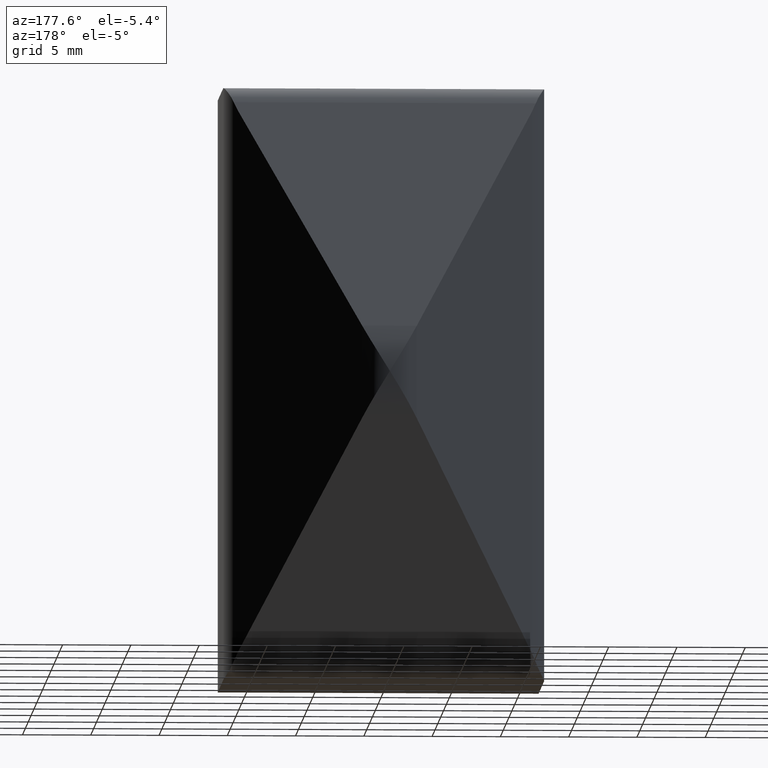
[diagram: clean part render]
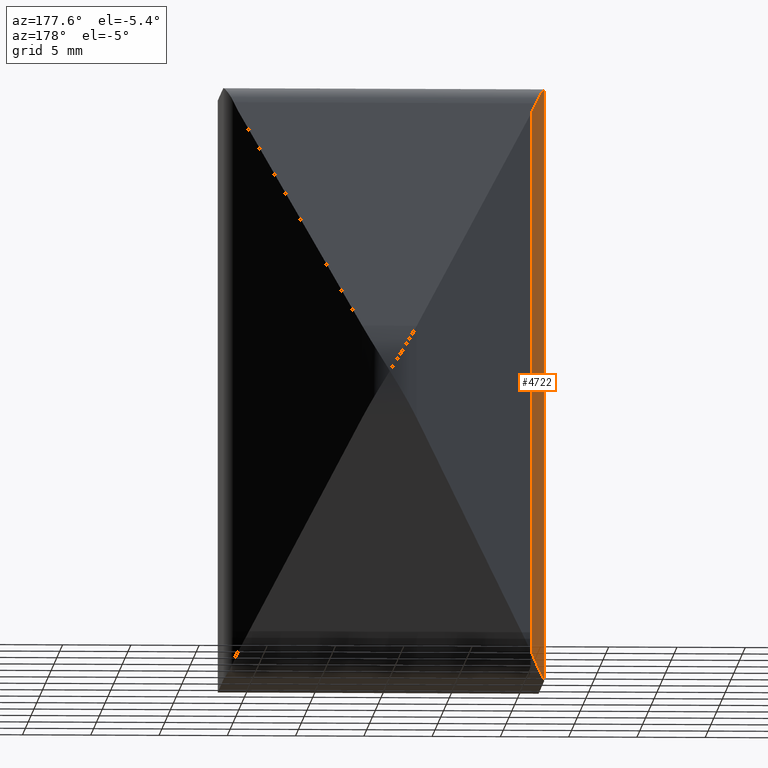
[diagram: same view with one face highlighted and labeled with its STEP entity id]
A machine part, auxiliary view. The second image highlights one B-rep face of the part: STEP entity #4722.
In plain terms, the highlighted cylindrical surface (partial cylindrical patch) has radius 3 mm, axis along (-0, -0, -1).
Its self-contained STEP definition (entity closure, byte-faithful):
#291 = EDGE_CURVE ( 'NONE', #2282, #7958, #3112, .T. ) ;
#623 = CARTESIAN_POINT ( 'NONE',  ( -11.12936365496484292, 11.49048314453780861, -20.71906821089724815 ) ) ;
#1331 = ORIENTED_EDGE ( 'NONE', *, *, #6806, .T. ) ;
#1466 = CARTESIAN_POINT ( 'NONE',  ( -11.12936365496484292, 11.49048314453781394, 20.71906821089724815 ) ) ;
#1951 = DIRECTION ( 'NONE',  ( -1.000000000000000000, 0.000000000000000000, 0.000000000000000000 ) ) ;
#2100 = CARTESIAN_POINT ( 'NONE',  ( -11.74999999999998934, 9.659937604194869465, -21.75000000000000000 ) ) ;
#2282 = VERTEX_POINT ( 'NONE', #14055 ) ;
#2347 = VERTEX_POINT ( 'NONE', #2100 ) ;
#2751 = CARTESIAN_POINT ( 'NONE',  ( -11.44812434713124460, 10.98342225347418122, 21.29804950711899281 ) ) ;
#2867 = CARTESIAN_POINT ( 'NONE',  ( -11.05863124245042428, 11.57571989516164024, -20.53991164497543664 ) ) ;
#2968 = CARTESIAN_POINT ( 'NONE',  ( -11.75000000000000178, 9.871120597097993610, -21.75000000000001066 ) ) ;
#3112 =( BOUNDED_CURVE ( )  B_SPLINE_CURVE ( 3, ( #5000, #11409, #10283, #3806 ),
 .UNSPECIFIED., .F., .F. ) 
 B_SPLINE_CURVE_WITH_KNOTS ( ( 4, 4 ),
 ( 5.405058927440569150, 5.552580595318936219 ),
 .UNSPECIFIED. ) 
 CURVE ( )  GEOMETRIC_REPRESENTATION_ITEM ( )  RATIONAL_B_SPLINE_CURVE ( ( 1.000000000000000000, 0.9981872685538730749, 0.9981872685538730749, 1.000000000000000000 ) ) 
 REPRESENTATION_ITEM ( '' )  );
#3308 = CARTESIAN_POINT ( 'NONE',  ( -11.05863124245042428, 11.57571989516164024, -20.53991164497543664 ) ) ;
#3386 = B_SPLINE_CURVE_WITH_KNOTS ( 'NONE', 3,
 ( #8408, #623, #8296, #9615, #9453, #14745, #14692, #12149, #2968, #4406 ),
 .UNSPECIFIED., .F., .F.,
 ( 4, 2, 2, 2, 4 ),
 ( 0.000000000000000000, 0.0006225841437978969035, 0.001245168287595793807, 0.001867752431393690602, 0.002490336575191587614 ),
 .UNSPECIFIED. ) ;
#3692 = ORIENTED_EDGE ( 'NONE', *, *, #6096, .F. ) ;
#3806 = CARTESIAN_POINT ( 'NONE',  ( -10.75196038653899322, 11.89425061063079880, 19.87040150168144947 ) ) ;
#4116 = ORIENTED_EDGE ( 'NONE', *, *, #4703, .F. ) ;
#4235 = CARTESIAN_POINT ( 'NONE',  ( -11.20924667139509268, 11.38460790133654932, 20.87886968654525077 ) ) ;
#4406 = CARTESIAN_POINT ( 'NONE',  ( -11.74999999999998934, 9.659937604194869465, -21.75000000000000000 ) ) ;
#4703 = EDGE_CURVE ( 'NONE', #11074, #10413, #9159, .T. ) ;
#4722 = ADVANCED_FACE ( 'NONE', ( #10478 ), #7020, .T. ) ;
#5000 = CARTESIAN_POINT ( 'NONE',  ( -11.05863124245042428, 11.57571989516164024, 20.53991164497543664 ) ) ;
#5090 = DIRECTION ( 'NONE',  ( -0.000000000000000000, -0.000000000000000000, -1.000000000000000000 ) ) ;
#5308 = CARTESIAN_POINT ( 'NONE',  ( -11.74999999999998757, 9.659937604194903216, 21.75000000000000000 ) ) ;
#5591 = CARTESIAN_POINT ( 'NONE',  ( -10.96433925110757812, 11.68934733506094226, -20.30108154202269333 ) ) ;
#5809 = CARTESIAN_POINT ( 'NONE',  ( -8.749999999999987566, 9.659937604194903216, 21.75000000000000000 ) ) ;
#5930 = ORIENTED_EDGE ( 'NONE', *, *, #10923, .T. ) ;
#5964 = DIRECTION ( 'NONE',  ( -0.000000000000000000, -0.000000000000000000, -1.000000000000000000 ) ) ;
#6096 = EDGE_CURVE ( 'NONE', #11928, #2347, #13826, .T. ) ;
#6544 = VECTOR ( 'NONE', #5090, 1000.000000000000000 ) ;
#6569 = CARTESIAN_POINT ( 'NONE',  ( -10.75196038653899322, 11.89425061063079880, -19.87040150168144947 ) ) ;
#6707 = ORIENTED_EDGE ( 'NONE', *, *, #291, .T. ) ;
#6806 = EDGE_CURVE ( 'NONE', #7958, #10413, #15863, .T. ) ;
#7020 = CYLINDRICAL_SURFACE ( 'NONE', #9956, 3.000000000000002665 ) ;
#7958 = VERTEX_POINT ( 'NONE', #9567 ) ;
#8126 = CARTESIAN_POINT ( 'NONE',  ( -11.05863124245042428, 11.57571989516164024, 20.53991164497543664 ) ) ;
#8150 = B_SPLINE_CURVE_WITH_KNOTS ( 'NONE', 3,
 ( #8126, #1466, #4235, #9276, #2751, #10537, #10477, #10594, #13065, #5308 ),
 .UNSPECIFIED., .F., .F.,
 ( 4, 2, 2, 2, 4 ),
 ( 0.000000000000000000, 0.0006225841437978887720, 0.001245168287595777544, 0.001867752431393666316, 0.002490336575191555088 ),
 .UNSPECIFIED. ) ;
#8296 = CARTESIAN_POINT ( 'NONE',  ( -11.20924667139509268, 11.38460790133655109, -20.87886968654525788 ) ) ;
#8371 = VECTOR ( 'NONE', #5964, 1000.000000000000000 ) ;
#8408 = CARTESIAN_POINT ( 'NONE',  ( -11.05863124245042428, 11.57571989516164024, -20.53991164497543664 ) ) ;
#9159 =( BOUNDED_CURVE ( )  B_SPLINE_CURVE ( 3, ( #2867, #5591, #15985, #14582 ),
 .UNSPECIFIED., .F., .F. ) 
 B_SPLINE_CURVE_WITH_KNOTS ( ( 4, 4 ),
 ( 2.263466273850775590, 2.410987941729143103 ),
 .UNSPECIFIED. ) 
 CURVE ( )  GEOMETRIC_REPRESENTATION_ITEM ( )  RATIONAL_B_SPLINE_CURVE ( ( 1.000000000000000000, 0.9981872685538730749, 0.9981872685538730749, 1.000000000000000000 ) ) 
 REPRESENTATION_ITEM ( '' )  );
#9208 = CARTESIAN_POINT ( 'NONE',  ( -11.74999999999998757, 9.659937604194903216, 21.75000000000000000 ) ) ;
#9276 = CARTESIAN_POINT ( 'NONE',  ( -11.36863216425758338, 11.13138159324991072, 21.16886789311140760 ) ) ;
#9453 = CARTESIAN_POINT ( 'NONE',  ( -11.44812434713125171, 10.98342225347417411, -21.29804950711899991 ) ) ;
#9567 = CARTESIAN_POINT ( 'NONE',  ( -10.75196038653899322, 11.89425061063079880, 19.87040150168144947 ) ) ;
#9615 = CARTESIAN_POINT ( 'NONE',  ( -11.36863216425759227, 11.13138159324990184, -21.16886789311141115 ) ) ;
#9956 = AXIS2_PLACEMENT_3D ( 'NONE', #5809, #12218, #1951 ) ;
#10283 = CARTESIAN_POINT ( 'NONE',  ( -10.86192999198604880, 11.79571705996257158, 20.07750621222713860 ) ) ;
#10413 = VERTEX_POINT ( 'NONE', #6569 ) ;
#10477 = CARTESIAN_POINT ( 'NONE',  ( -11.64514472616720120, 10.47111210277831717, 21.59940708564871770 ) ) ;
#10478 = FACE_OUTER_BOUND ( 'NONE', #13701, .T. ) ;
#10537 = CARTESIAN_POINT ( 'NONE',  ( -11.58532902084411198, 10.65612832540218413, 21.51173873585864271 ) ) ;
#10594 = CARTESIAN_POINT ( 'NONE',  ( -11.72710927502301281, 10.08027962823931389, 21.71794456373258697 ) ) ;
#10825 = EDGE_CURVE ( 'NONE', #2282, #11928, #8150, .T. ) ;
#10923 = EDGE_CURVE ( 'NONE', #11074, #2347, #3386, .T. ) ;
#11074 = VERTEX_POINT ( 'NONE', #3308 ) ;
#11409 = CARTESIAN_POINT ( 'NONE',  ( -10.96433925110757635, 11.68934733506094048, 20.30108154202269688 ) ) ;
#11551 = CARTESIAN_POINT ( 'NONE',  ( -11.74999999999998757, 9.659937604194903216, 21.75000000000000000 ) ) ;
#11928 = VERTEX_POINT ( 'NONE', #9208 ) ;
#12149 = CARTESIAN_POINT ( 'NONE',  ( -11.72710927502301281, 10.08027962823928902, -21.71794456373259408 ) ) ;
#12218 = DIRECTION ( 'NONE',  ( -0.000000000000000000, -0.000000000000000000, -1.000000000000000000 ) ) ;
#13065 = CARTESIAN_POINT ( 'NONE',  ( -11.75000000000000178, 9.871120597097993610, 21.75000000000001066 ) ) ;
#13701 = EDGE_LOOP ( 'NONE', ( #4116, #5930, #3692, #15565, #6707, #1331 ) ) ;
#13826 = LINE ( 'NONE', #11551, #6544 ) ;
#14055 = CARTESIAN_POINT ( 'NONE',  ( -11.05863124245042428, 11.57571989516164024, 20.53991164497543664 ) ) ;
#14582 = CARTESIAN_POINT ( 'NONE',  ( -10.75196038653899322, 11.89425061063079880, -19.87040150168144947 ) ) ;
#14692 = CARTESIAN_POINT ( 'NONE',  ( -11.64514472616720653, 10.47111210277829763, -21.59940708564872480 ) ) ;
#14745 = CARTESIAN_POINT ( 'NONE',  ( -11.58532902084411553, 10.65612832540217347, -21.51173873585865692 ) ) ;
#15565 = ORIENTED_EDGE ( 'NONE', *, *, #10825, .F. ) ;
#15863 = LINE ( 'NONE', #16257, #8371 ) ;
#15985 = CARTESIAN_POINT ( 'NONE',  ( -10.86192999198604880, 11.79571705996257158, -20.07750621222713505 ) ) ;
#16257 = CARTESIAN_POINT ( 'NONE',  ( -10.75196038653899322, 11.89425061063079880, 21.75000000000000000 ) ) ;